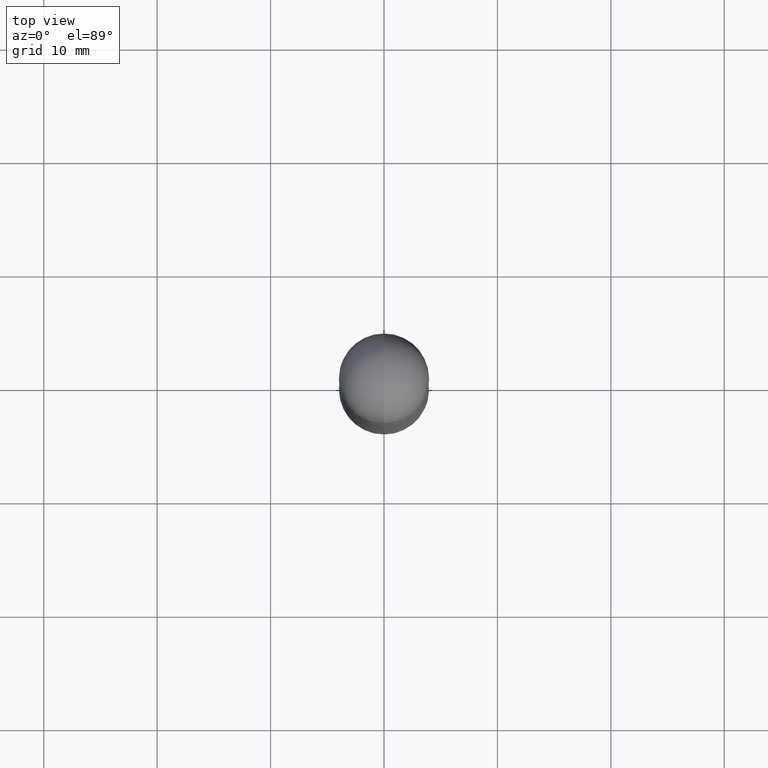
[diagram: clean part render]
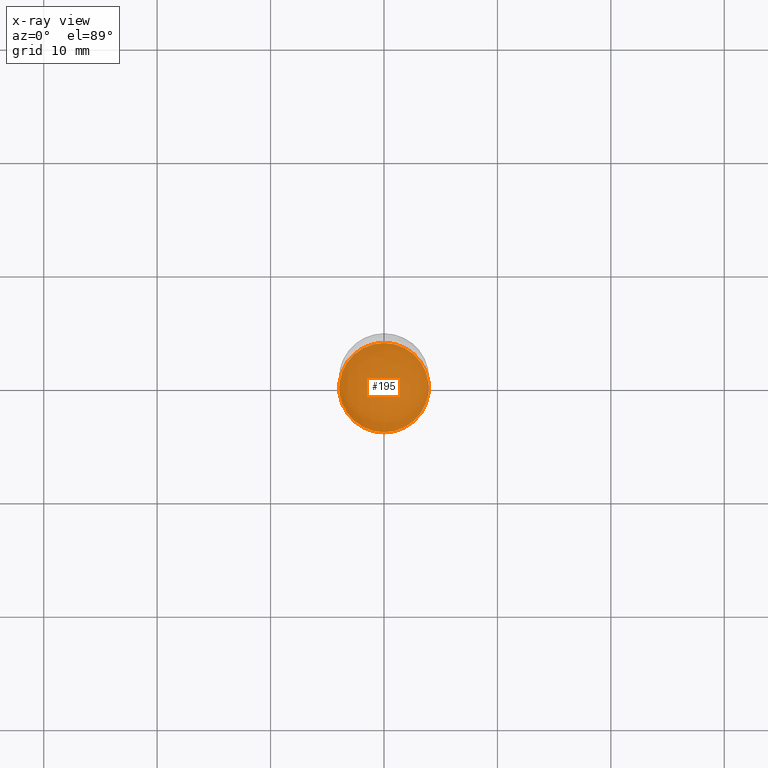
[diagram: x-ray — body ghosted, one internal face saturated and labeled with its STEP entity id]
A machine part, top view, then the same camera in x-ray: the body is ghosted and one INTERNAL B-rep face — a face not visible from any outside direction — is saturated and labeled: STEP entity #195.
In plain terms, the highlighted planar face has unit normal (-0, 0, 1).
Its self-contained STEP definition (entity closure, byte-faithful):
#82 = AXIS2_PLACEMENT_3D ( 'NONE', #458, #652, #165 ) ;
#100 = ORIENTED_EDGE ( 'NONE', *, *, #449, .F. ) ;
#116 = DIRECTION ( 'NONE',  ( -6.982962677686265922E-15, -1.000000000000000000, 3.491668687805485632E-15 ) ) ;
#163 = CIRCLE ( 'NONE', #343, 0.1552499999999999991 ) ;
#165 = DIRECTION ( 'NONE',  ( -6.982962677686265922E-15, -1.000000000000000000, 3.519288880726909138E-15 ) ) ;
#195 = ADVANCED_FACE ( 'NONE', ( #494 ), #740, .F. ) ;
#213 = CARTESIAN_POINT ( 'NONE',  ( 1.106670310946405735E-15, 0.1552499999999930047, -2.000000000000000888 ) ) ;
#221 = CARTESIAN_POINT ( 'NONE',  ( 4.890675962207929203E-29, -6.983337375610972054E-15, -2.000000000000000444 ) ) ;
#222 = EDGE_LOOP ( 'NONE', ( #354, #100 ) ) ;
#343 = AXIS2_PLACEMENT_3D ( 'NONE', #221, #523, #777 ) ;
#354 = ORIENTED_EDGE ( 'NONE', *, *, #500, .F. ) ;
#384 = VERTEX_POINT ( 'NONE', #213 ) ;
#429 = CIRCLE ( 'NONE', #82, 0.1552499999999999991 ) ;
#449 = EDGE_CURVE ( 'NONE', #384, #464, #163, .T. ) ;
#458 = CARTESIAN_POINT ( 'NONE',  ( 4.890675962207929203E-29, -6.983337375610972054E-15, -2.000000000000000444 ) ) ;
#464 = VERTEX_POINT ( 'NONE', #586 ) ;
#494 = FACE_OUTER_BOUND ( 'NONE', #222, .T. ) ;
#500 = EDGE_CURVE ( 'NONE', #464, #384, #429, .T. ) ;
#523 = DIRECTION ( 'NONE',  ( -2.445337981103964041E-29, 3.491668687805485632E-15, 1.000000000000000000 ) ) ;
#586 = CARTESIAN_POINT ( 'NONE',  ( -1.084104955710744053E-15, -0.1552500000000069935, -1.999999999999999778 ) ) ;
#652 = DIRECTION ( 'NONE',  ( -2.445337981103964041E-29, 3.491668687805485632E-15, 1.000000000000000000 ) ) ;
#667 = AXIS2_PLACEMENT_3D ( 'NONE', #672, #811, #116 ) ;
#672 = CARTESIAN_POINT ( 'NONE',  ( 4.890675962207928082E-29, -6.983337375610971265E-15, -2.000000000000000000 ) ) ;
#740 = PLANE ( 'NONE',  #667 ) ;
#777 = DIRECTION ( 'NONE',  ( -6.982962677686265922E-15, -1.000000000000000000, 3.519288880726909138E-15 ) ) ;
#811 = DIRECTION ( 'NONE',  ( -2.445337981103963761E-29, 3.491668687805485632E-15, 1.000000000000000000 ) ) ;